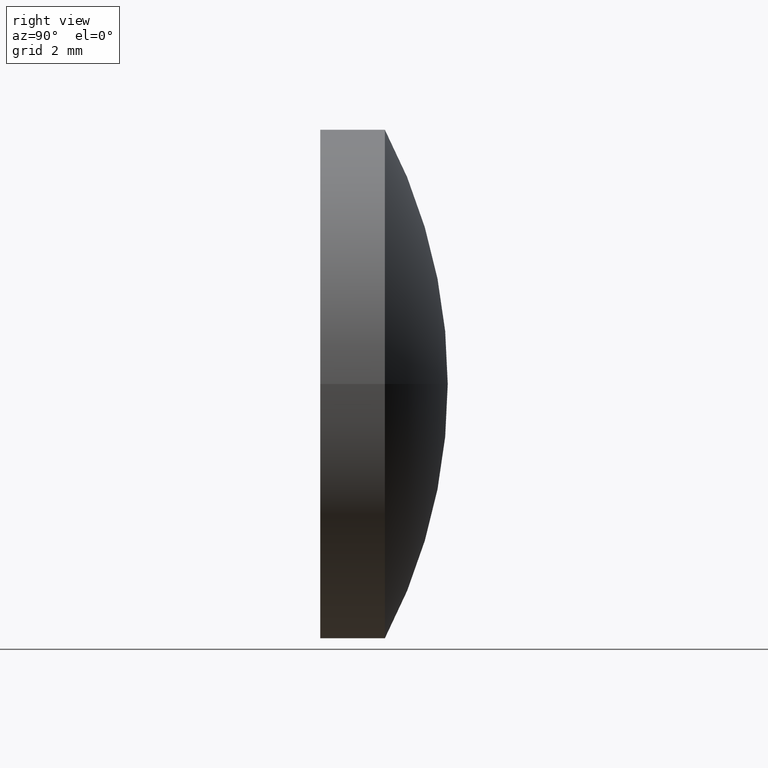
[diagram: clean part render]
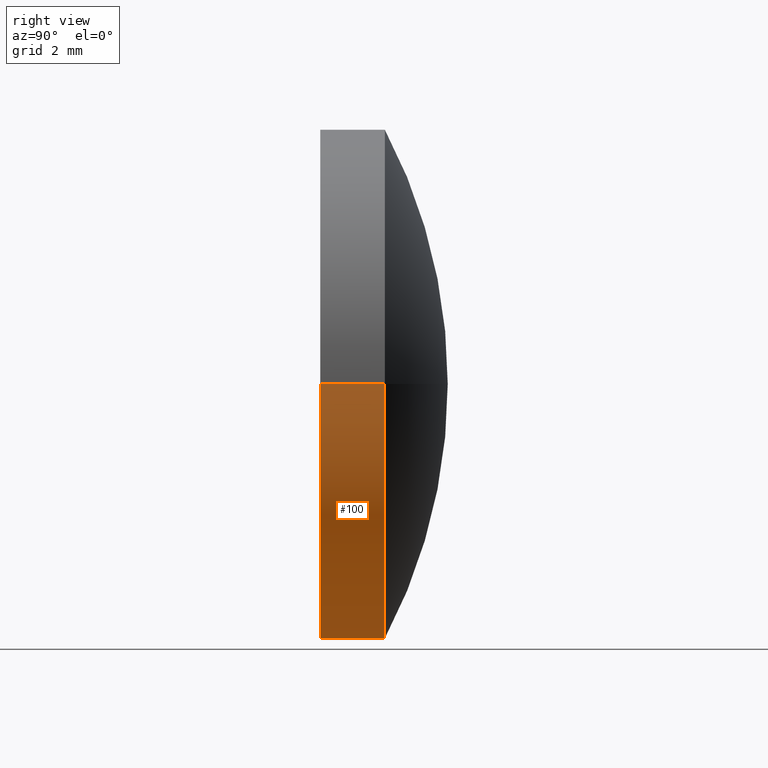
[diagram: same view with one face highlighted and labeled with its STEP entity id]
A machine part, right view. The second image highlights one B-rep face of the part: STEP entity #100.
In plain terms, the highlighted cylindrical surface (partial cylindrical patch) has radius 6 mm, axis along (0, 1, -0).
Its self-contained STEP definition (entity closure, byte-faithful):
#4 = EDGE_CURVE ( 'NONE', #38, #37, #21, .T. ) ;
#6 = CIRCLE ( 'NONE', #154, 6.000000000000000000 ) ;
#10 = EDGE_CURVE ( 'NONE', #53, #38, #113, .T. ) ;
#12 = FACE_OUTER_BOUND ( 'NONE', #138, .T. ) ;
#21 = LINE ( 'NONE', #24, #33 ) ;
#24 = CARTESIAN_POINT ( 'NONE',  ( -6.000000000000000000, 3.000000000000000444, 0.000000000000000000 ) ) ;
#26 = EDGE_CURVE ( 'NONE', #53, #97, #83, .T. ) ;
#33 = VECTOR ( 'NONE', #135, 1000.000000000000000 ) ;
#37 = VERTEX_POINT ( 'NONE', #71 ) ;
#38 = VERTEX_POINT ( 'NONE', #58 ) ;
#53 = VERTEX_POINT ( 'NONE', #70 ) ;
#57 = CARTESIAN_POINT ( 'NONE',  ( -7.222237291452134449E-32, -1.301042606982605321E-15, 0.000000000000000000 ) ) ;
#58 = CARTESIAN_POINT ( 'NONE',  ( -6.000000000000000000, -9.431141837974319298E-16, 0.000000000000000000 ) ) ;
#59 = DIRECTION ( 'NONE',  ( -1.000000000000000000, 7.228014483236695816E-17, 0.000000000000000000 ) ) ;
#68 = AXIS2_PLACEMENT_3D ( 'NONE', #57, #96, #162 ) ;
#70 = CARTESIAN_POINT ( 'NONE',  ( 6.000000000000000000, -1.658971030167778712E-15, 7.347880794884119736E-16 ) ) ;
#71 = CARTESIAN_POINT ( 'NONE',  ( -6.000000000000000000, 1.519999999999998908, 0.000000000000000000 ) ) ;
#72 = ORIENTED_EDGE ( 'NONE', *, *, #26, .F. ) ;
#80 = EDGE_CURVE ( 'NONE', #97, #37, #6, .T. ) ;
#83 = LINE ( 'NONE', #149, #148 ) ;
#86 = ORIENTED_EDGE ( 'NONE', *, *, #10, .T. ) ;
#96 = DIRECTION ( 'NONE',  ( 5.965473719752887796E-17, 1.000000000000000000, -0.000000000000000000 ) ) ;
#97 = VERTEX_POINT ( 'NONE', #183 ) ;
#100 = ADVANCED_FACE ( 'NONE', ( #12 ), #194, .T. ) ;
#101 = CARTESIAN_POINT ( 'NONE',  ( 1.789642115925866215E-16, 3.000000000000000000, 0.000000000000000000 ) ) ;
#113 = CIRCLE ( 'NONE', #68, 6.000000000000000000 ) ;
#119 = DIRECTION ( 'NONE',  ( 5.965473719752887796E-17, 1.000000000000000000, -0.000000000000000000 ) ) ;
#124 = DIRECTION ( 'NONE',  ( 5.965473719752887796E-17, 1.000000000000000000, -0.000000000000000000 ) ) ;
#127 = AXIS2_PLACEMENT_3D ( 'NONE', #101, #124, #59 ) ;
#135 = DIRECTION ( 'NONE',  ( 5.965473719752887796E-17, 1.000000000000000000, -0.000000000000000000 ) ) ;
#138 = EDGE_LOOP ( 'NONE', ( #72, #86, #192, #165 ) ) ;
#141 = DIRECTION ( 'NONE',  ( -1.000000000000000000, 7.228014483236695816E-17, 0.000000000000000000 ) ) ;
#148 = VECTOR ( 'NONE', #119, 1000.000000000000000 ) ;
#149 = CARTESIAN_POINT ( 'NONE',  ( 6.000000000000000000, 2.999999999999999556, 7.347880794884119736E-16 ) ) ;
#154 = AXIS2_PLACEMENT_3D ( 'NONE', #166, #168, #141 ) ;
#162 = DIRECTION ( 'NONE',  ( -1.000000000000000000, 5.965473719752889028E-17, 0.000000000000000000 ) ) ;
#165 = ORIENTED_EDGE ( 'NONE', *, *, #80, .F. ) ;
#166 = CARTESIAN_POINT ( 'NONE',  ( 9.067520054024382547E-17, 1.519999999999998685, 0.000000000000000000 ) ) ;
#168 = DIRECTION ( 'NONE',  ( 5.965473719752887796E-17, 1.000000000000000000, -0.000000000000000000 ) ) ;
#183 = CARTESIAN_POINT ( 'NONE',  ( 6.000000000000000000, 1.519999999999998463, 7.347880794884119736E-16 ) ) ;
#192 = ORIENTED_EDGE ( 'NONE', *, *, #4, .T. ) ;
#194 = CYLINDRICAL_SURFACE ( 'NONE', #127, 6.000000000000000000 ) ;